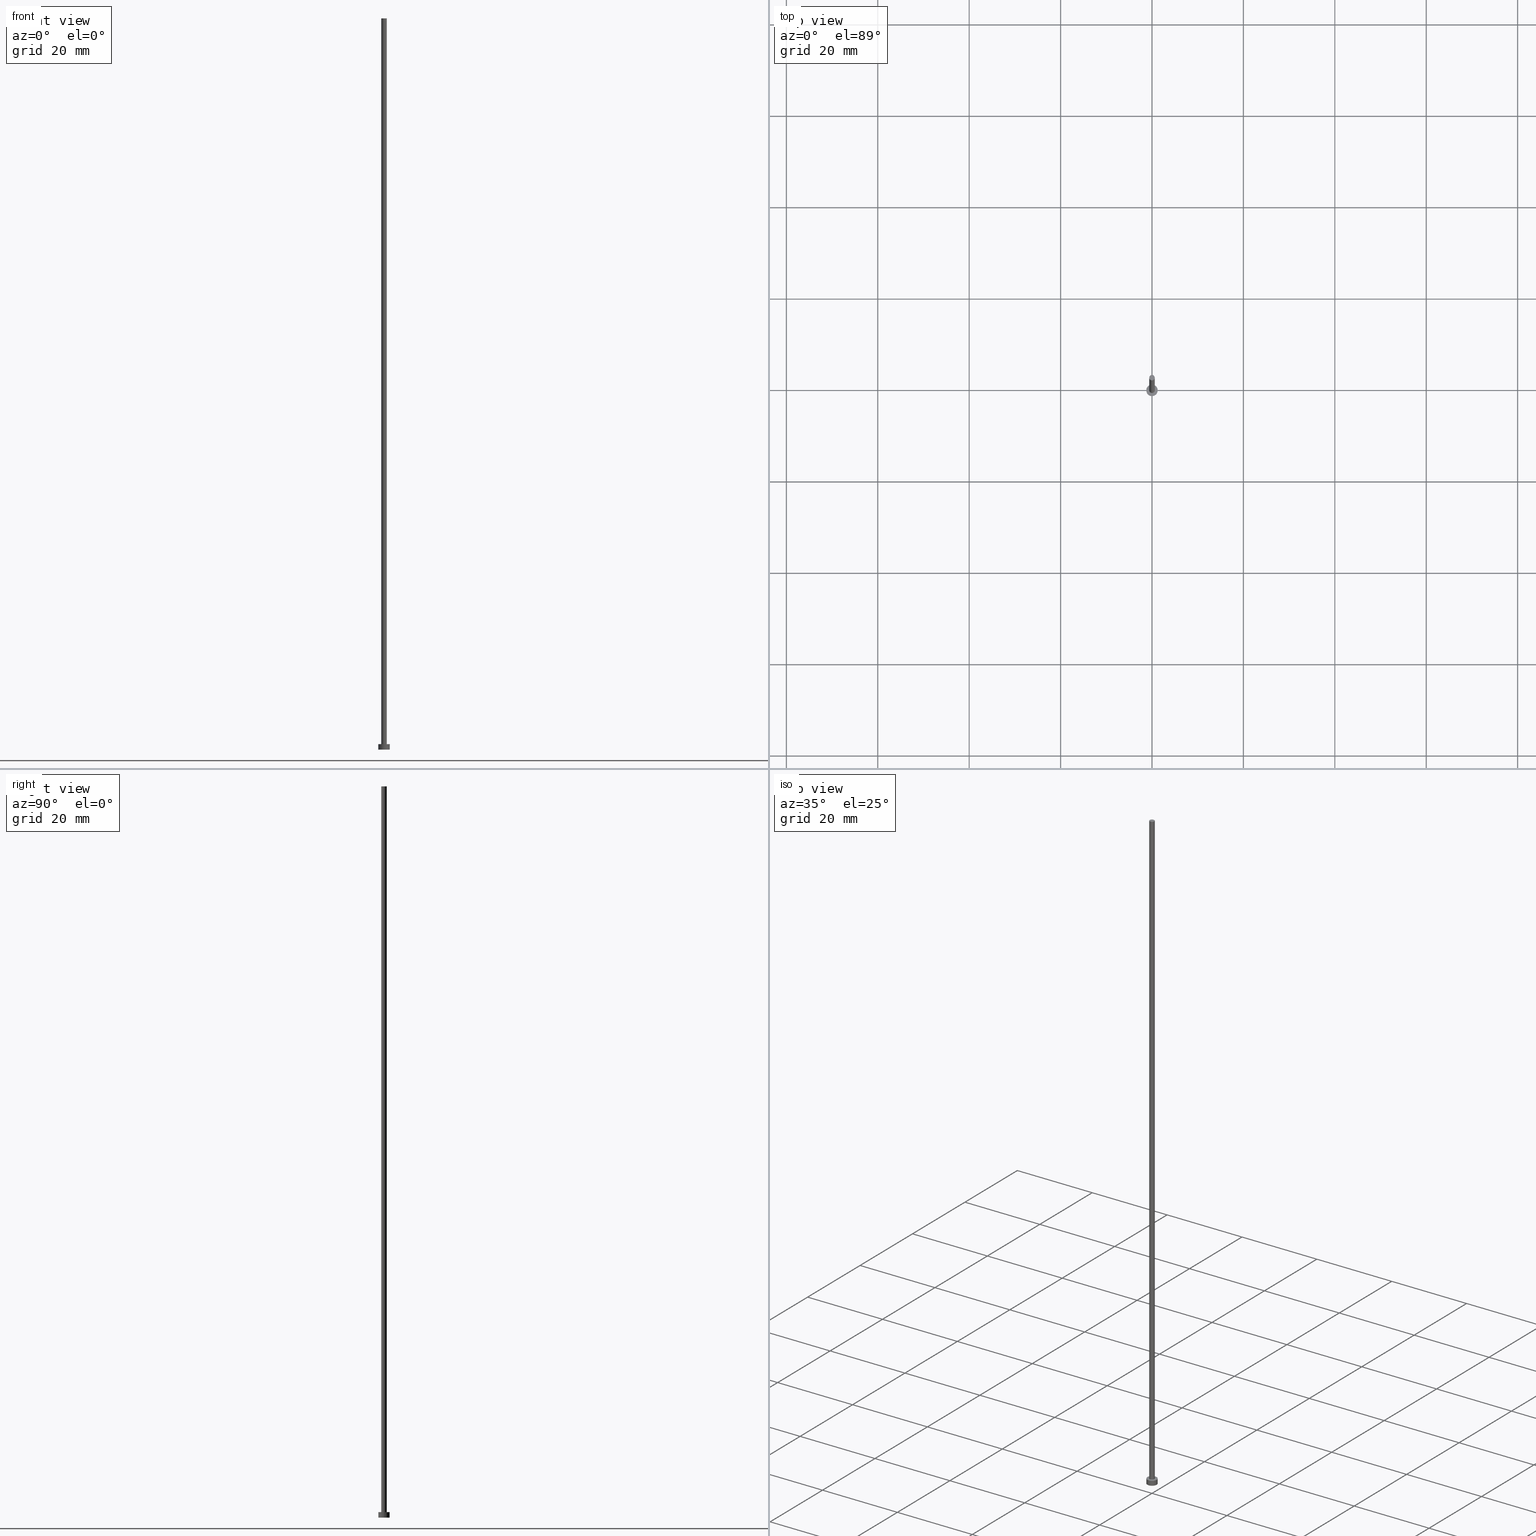
[diagram: canonical four-view strip — front | top / right | iso, engineering-drawing reading convention]
A machine part, canonical four-view strip (front | top / right | iso — engineering-drawing reading convention). The complete STEP part file that produces these views, byte-faithful:
ISO-10303-21;
HEADER;
FILE_DESCRIPTION (( 'STEP AP203' ),
    '1' );
FILE_NAME ('75b1.STEP',
    '2023-02-13T17:27:05',
    ( '' ),
    ( '' ),
    'SwSTEP 2.0',
    'SolidWorks 2019',
    '' );
FILE_SCHEMA (( 'CONFIG_CONTROL_DESIGN' ));
ENDSEC;

DATA;
#1 = ORIENTED_EDGE ( 'NONE', *, *, #59, .F. ) ;
#2 = CARTESIAN_POINT ( 'NONE',  ( 0.000000000000000000, 0.000000000000000000, 0.000000000000000000 ) ) ;
#3 = ORIENTED_EDGE ( 'NONE', *, *, #251, .F. ) ;
#4 =( NAMED_UNIT ( * ) PLANE_ANGLE_UNIT ( ) SI_UNIT ( $, .RADIAN. ) );
#5 = CC_DESIGN_PERSON_AND_ORGANIZATION_ASSIGNMENT ( #87, #158, ( #110 ) ) ;
#6 = APPROVAL_DATE_TIME ( #157, #100 ) ;
#7 = COORDINATED_UNIVERSAL_TIME_OFFSET ( 1, 0, .AHEAD. ) ;
#8 = CYLINDRICAL_SURFACE ( 'NONE', #36, 0.5999999999999999778 ) ;
#9 = DIRECTION ( 'NONE',  ( 1.000000000000000000, 0.000000000000000000, 0.000000000000000000 ) ) ;
#10 = CARTESIAN_POINT ( 'NONE',  ( 0.000000000000000000, 0.000000000000000000, 0.000000000000000000 ) ) ;
#11 = SHAPE_DEFINITION_REPRESENTATION ( #252, #230 ) ;
#12 = DIRECTION ( 'NONE',  ( 1.000000000000000000, 0.000000000000000000, 0.000000000000000000 ) ) ;
#13 = EDGE_CURVE ( 'NONE', #188, #146, #212, .T. ) ;
#14 = LINE ( 'NONE', #101, #127 ) ;
#15 = DIRECTION ( 'NONE',  ( -0.000000000000000000, -0.000000000000000000, -1.000000000000000000 ) ) ;
#16 = PRODUCT ( '75b1', '75b1', '', ( #45 ) ) ;
#17 = CARTESIAN_POINT ( 'NONE',  ( 0.000000000000000000, 0.000000000000000000, 0.000000000000000000 ) ) ;
#18 = VECTOR ( 'NONE', #205, 1000.000000000000000 ) ;
#19 = LOCAL_TIME ( 18, 27, 5.000000000000000000, #112 ) ;
#20 = DATE_AND_TIME ( #197, #166 ) ;
#21 = ORIENTED_EDGE ( 'NONE', *, *, #182, .T. ) ;
#22 = CARTESIAN_POINT ( 'NONE',  ( 0.000000000000000000, 0.000000000000000000, 160.0000000000000284 ) ) ;
#23 = EDGE_CURVE ( 'NONE', #146, #188, #253, .T. ) ;
#24 = EDGE_LOOP ( 'NONE', ( #125, #3, #44, #159 ) ) ;
#25 = UNCERTAINTY_MEASURE_WITH_UNIT (LENGTH_MEASURE( 1.000000000000000082E-05 ), #160, 'distance_accuracy_value', 'NONE');
#26 = CARTESIAN_POINT ( 'NONE',  ( -1.250000000000000000, 0.000000000000000000, 1.199999999999999956 ) ) ;
#27 = DIRECTION ( 'NONE',  ( -0.000000000000000000, -0.000000000000000000, -1.000000000000000000 ) ) ;
#28 = DIRECTION ( 'NONE',  ( 1.000000000000000000, 0.000000000000000000, 0.000000000000000000 ) ) ;
#29 = ADVANCED_FACE ( 'NONE', ( #114 ), #8, .T. ) ;
#30 = SECURITY_CLASSIFICATION_LEVEL ( 'unclassified' ) ;
#31 = AXIS2_PLACEMENT_3D ( 'NONE', #190, #57, #229 ) ;
#32 = DIRECTION ( 'NONE',  ( 0.000000000000000000, 0.000000000000000000, 1.000000000000000000 ) ) ;
#33 = DIRECTION ( 'NONE',  ( 0.000000000000000000, 0.000000000000000000, 1.000000000000000000 ) ) ;
#34 = CALENDAR_DATE ( 2023, 13, 2 ) ;
#35 = ADVANCED_FACE ( 'NONE', ( #94, #129 ), #169, .T. ) ;
#36 = AXIS2_PLACEMENT_3D ( 'NONE', #222, #171, #185 ) ;
#37 = DIRECTION ( 'NONE',  ( 0.000000000000000000, 0.000000000000000000, 1.000000000000000000 ) ) ;
#38 = AXIS2_PLACEMENT_3D ( 'NONE', #242, #124, #111 ) ;
#39 = CARTESIAN_POINT ( 'NONE',  ( 0.000000000000000000, 0.000000000000000000, 0.000000000000000000 ) ) ;
#40 = AXIS2_PLACEMENT_3D ( 'NONE', #22, #164, #28 ) ;
#41 = EDGE_LOOP ( 'NONE', ( #180, #21 ) ) ;
#42 = ORIENTED_EDGE ( 'NONE', *, *, #131, .F. ) ;
#43 = CALENDAR_DATE ( 2023, 13, 2 ) ;
#44 = ORIENTED_EDGE ( 'NONE', *, *, #59, .T. ) ;
#45 = MECHANICAL_CONTEXT ( 'NONE', #128, 'mechanical' ) ;
#46 = CARTESIAN_POINT ( 'NONE',  ( 0.000000000000000000, 0.000000000000000000, 1.199999999999999956 ) ) ;
#47 = PERSON_AND_ORGANIZATION_ROLE ( 'design_owner' ) ;
#48 = VECTOR ( 'NONE', #15, 1000.000000000000000 ) ;
#49 = CYLINDRICAL_SURFACE ( 'NONE', #233, 1.250000000000000000 ) ;
#50 = DIRECTION ( 'NONE',  ( -1.000000000000000000, 0.000000000000000000, 0.000000000000000000 ) ) ;
#51 = CC_DESIGN_PERSON_AND_ORGANIZATION_ASSIGNMENT ( #201, #181, ( #155 ) ) ;
#52 = CARTESIAN_POINT ( 'NONE',  ( 0.000000000000000000, 0.000000000000000000, 1.199999999999999956 ) ) ;
#53 = LINE ( 'NONE', #133, #18 ) ;
#54 = APPROVAL_STATUS ( 'not_yet_approved' ) ;
#55 = CIRCLE ( 'NONE', #38, 1.250000000000000000 ) ;
#56 = CALENDAR_DATE ( 2023, 13, 2 ) ;
#57 = DIRECTION ( 'NONE',  ( 0.000000000000000000, 0.000000000000000000, 1.000000000000000000 ) ) ;
#58 = CIRCLE ( 'NONE', #194, 1.250000000000000000 ) ;
#59 = EDGE_CURVE ( 'NONE', #200, #109, #53, .T. ) ;
#60 = CARTESIAN_POINT ( 'NONE',  ( 1.250000000000000000, 1.530808498934191571E-16, 1.199999999999999956 ) ) ;
#61 = DIRECTION ( 'NONE',  ( 1.000000000000000000, 0.000000000000000000, 0.000000000000000000 ) ) ;
#62 = ORIENTED_EDGE ( 'NONE', *, *, #251, .T. ) ;
#63 = LOCAL_TIME ( 18, 27, 5.000000000000000000, #244 ) ;
#64 = ORIENTED_EDGE ( 'NONE', *, *, #79, .T. ) ;
#65 = DIRECTION ( 'NONE',  ( 0.000000000000000000, 0.000000000000000000, 1.000000000000000000 ) ) ;
#66 = FACE_OUTER_BOUND ( 'NONE', #24, .T. ) ;
#67 = APPLICATION_PROTOCOL_DEFINITION ( 'international standard', 'config_control_design', 1994, #143 ) ;
#68 = AXIS2_PLACEMENT_3D ( 'NONE', #235, #90, #50 ) ;
#69 = ORIENTED_EDGE ( 'NONE', *, *, #13, .T. ) ;
#70 = PERSON_AND_ORGANIZATION ( #136, #134 ) ;
#71 = DIRECTION ( 'NONE',  ( 1.000000000000000000, 0.000000000000000000, -0.000000000000000000 ) ) ;
#72 = DATE_TIME_ROLE ( 'classification_date' ) ;
#73 = CARTESIAN_POINT ( 'NONE',  ( -0.5999999999999999778, 0.000000000000000000, 160.0000000000000284 ) ) ;
#74 = EDGE_CURVE ( 'NONE', #236, #109, #138, .T. ) ;
#75 = PERSON_AND_ORGANIZATION ( #136, #134 ) ;
#76 = FACE_OUTER_BOUND ( 'NONE', #41, .T. ) ;
#77 = PERSON_AND_ORGANIZATION_ROLE ( 'classification_officer' ) ;
#78 = DIRECTION ( 'NONE',  ( 1.000000000000000000, 0.000000000000000000, -0.000000000000000000 ) ) ;
#79 = EDGE_CURVE ( 'NONE', #119, #146, #241, .T. ) ;
#80 = CARTESIAN_POINT ( 'NONE',  ( 0.000000000000000000, 0.000000000000000000, 160.0000000000000284 ) ) ;
#81 = ADVANCED_FACE ( 'NONE', ( #225 ), #95, .T. ) ;
#82 = SECURITY_CLASSIFICATION ( '', '', #30 ) ;
#83 = PLANE ( 'NONE',  #226 ) ;
#84 = AXIS2_PLACEMENT_3D ( 'NONE', #187, #65, #204 ) ;
#85 = CIRCLE ( 'NONE', #186, 1.250000000000000000 ) ;
#86 = APPROVAL_ROLE ( '' ) ;
#87 = PERSON_AND_ORGANIZATION ( #136, #134 ) ;
#88 = ORIENTED_EDGE ( 'NONE', *, *, #23, .F. ) ;
#89 = APPROVAL_ROLE ( '' ) ;
#90 = DIRECTION ( 'NONE',  ( -0.000000000000000000, -0.000000000000000000, -1.000000000000000000 ) ) ;
#91 = EDGE_LOOP ( 'NONE', ( #88, #243 ) ) ;
#92 = VECTOR ( 'NONE', #154, 1000.000000000000000 ) ;
#93 = CC_DESIGN_SECURITY_CLASSIFICATION ( #82, ( #110 ) ) ;
#94 = FACE_BOUND ( 'NONE', #91, .T. ) ;
#95 = CYLINDRICAL_SURFACE ( 'NONE', #174, 1.250000000000000000 ) ;
#96 = AXIS2_PLACEMENT_3D ( 'NONE', #17, #37, #191 ) ;
#97 = DIRECTION ( 'NONE',  ( 0.000000000000000000, 0.000000000000000000, 1.000000000000000000 ) ) ;
#98 = DIRECTION ( 'NONE',  ( 1.000000000000000000, 0.000000000000000000, 0.000000000000000000 ) ) ;
#99 = FACE_OUTER_BOUND ( 'NONE', #239, .T. ) ;
#100 = APPROVAL ( #214, 'NEUR�EN�' ) ;
#101 = CARTESIAN_POINT ( 'NONE',  ( 1.250000000000000000, 1.530808498934191571E-16, 1.199999999999999956 ) ) ;
#102 = APPROVAL ( #255, 'NEUR�EN�' ) ;
#103 = AXIS2_PLACEMENT_3D ( 'NONE', #245, #247, #71 ) ;
#104 = ORIENTED_EDGE ( 'NONE', *, *, #79, .F. ) ;
#105 = FACE_OUTER_BOUND ( 'NONE', #113, .T. ) ;
#106 = ORIENTED_EDGE ( 'NONE', *, *, #156, .F. ) ;
#107 = PRODUCT_RELATED_PRODUCT_CATEGORY ( 'detail', '', ( #16 ) ) ;
#108 = CLOSED_SHELL ( 'NONE', ( #223, #81, #118, #35, #140, #29, #161 ) ) ;
#109 = VERTEX_POINT ( 'NONE', #163 ) ;
#110 = PRODUCT_DEFINITION_FORMATION_WITH_SPECIFIED_SOURCE ( 'LIBOVOLN�', '', #16, .NOT_KNOWN. ) ;
#111 = DIRECTION ( 'NONE',  ( 1.000000000000000000, 0.000000000000000000, 0.000000000000000000 ) ) ;
#112 = COORDINATED_UNIVERSAL_TIME_OFFSET ( 1, 0, .AHEAD. ) ;
#113 = EDGE_LOOP ( 'NONE', ( #198, #152, #69, #104 ) ) ;
#114 = FACE_OUTER_BOUND ( 'NONE', #220, .T. ) ;
#115 = PERSON_AND_ORGANIZATION_ROLE ( 'design_supplier' ) ;
#116 = DIRECTION ( 'NONE',  ( 0.000000000000000000, 0.000000000000000000, 1.000000000000000000 ) ) ;
#117 = PLANE ( 'NONE',  #96 ) ;
#118 = ADVANCED_FACE ( 'NONE', ( #66 ), #49, .T. ) ;
#119 = VERTEX_POINT ( 'NONE', #135 ) ;
#120 = ORIENTED_EDGE ( 'NONE', *, *, #168, .F. ) ;
#121 = LOCAL_TIME ( 18, 27, 5.000000000000000000, #179 ) ;
#122 = COORDINATED_UNIVERSAL_TIME_OFFSET ( 1, 0, .AHEAD. ) ;
#123 = CC_DESIGN_PERSON_AND_ORGANIZATION_ASSIGNMENT ( #167, #77, ( #82 ) ) ;
#124 = DIRECTION ( 'NONE',  ( 0.000000000000000000, 0.000000000000000000, 1.000000000000000000 ) ) ;
#125 = ORIENTED_EDGE ( 'NONE', *, *, #153, .F. ) ;
#126 = CYLINDRICAL_SURFACE ( 'NONE', #68, 0.5999999999999999778 ) ;
#127 = VECTOR ( 'NONE', #176, 1000.000000000000000 ) ;
#128 = APPLICATION_CONTEXT ( 'configuration controlled 3d designs of mechanical parts and assemblies' ) ;
#129 = FACE_OUTER_BOUND ( 'NONE', #216, .T. ) ;
#130 = CC_DESIGN_DATE_AND_TIME_ASSIGNMENT ( #221, #72, ( #82 ) ) ;
#131 = EDGE_CURVE ( 'NONE', #109, #236, #58, .T. ) ;
#132 = DIRECTION ( 'NONE',  ( 1.000000000000000000, 0.000000000000000000, 0.000000000000000000 ) ) ;
#133 = CARTESIAN_POINT ( 'NONE',  ( -1.250000000000000000, 0.000000000000000000, 1.199999999999999956 ) ) ;
#134 = ORGANIZATION ( 'NEUR�EN�', 'NEUR�EN�', '' ) ;
#135 = CARTESIAN_POINT ( 'NONE',  ( -0.5999999999999999778, 0.000000000000000000, 160.0000000000000284 ) ) ;
#136 = PERSON ( 'NEUR�EN�', 'NEUR�EN�', 'NEUR�EN�', ('NEUR�EN�'), ('NEUR�EN�'), ('NEUR�EN�') ) ;
#137 = DIRECTION ( 'NONE',  ( 0.000000000000000000, 0.000000000000000000, 1.000000000000000000 ) ) ;
#138 = CIRCLE ( 'NONE', #141, 1.250000000000000000 ) ;
#139 = APPROVAL_PERSON_ORGANIZATION ( #240, #100, #89 ) ;
#140 = ADVANCED_FACE ( 'NONE', ( #99 ), #117, .F. ) ;
#141 = AXIS2_PLACEMENT_3D ( 'NONE', #10, #32, #9 ) ;
#142 = LOCAL_TIME ( 18, 27, 5.000000000000000000, #7 ) ;
#143 = APPLICATION_CONTEXT ( 'configuration controlled 3d designs of mechanical parts and assemblies' ) ;
#144 = ORIENTED_EDGE ( 'NONE', *, *, #153, .T. ) ;
#145 = DIRECTION ( 'NONE',  ( -0.000000000000000000, -0.000000000000000000, -1.000000000000000000 ) ) ;
#146 = VERTEX_POINT ( 'NONE', #250 ) ;
#147 = APPROVAL_PERSON_ORGANIZATION ( #70, #224, #206 ) ;
#148 = CALENDAR_DATE ( 2023, 13, 2 ) ;
#149 = CC_DESIGN_PERSON_AND_ORGANIZATION_ASSIGNMENT ( #162, #47, ( #16 ) ) ;
#150 = CARTESIAN_POINT ( 'NONE',  ( 0.5999999999999999778, 7.347880794884117764E-17, 160.0000000000000284 ) ) ;
#151 = APPROVAL_DATE_TIME ( #227, #224 ) ;
#152 = ORIENTED_EDGE ( 'NONE', *, *, #168, .T. ) ;
#153 = EDGE_CURVE ( 'NONE', #177, #236, #14, .T. ) ;
#154 = DIRECTION ( 'NONE',  ( -0.000000000000000000, -0.000000000000000000, -1.000000000000000000 ) ) ;
#155 = PRODUCT_DEFINITION ( 'NEZN�M�', '', #110, #173 ) ;
#156 = EDGE_CURVE ( 'NONE', #177, #200, #85, .T. ) ;
#157 = DATE_AND_TIME ( #43, #19 ) ;
#158 = PERSON_AND_ORGANIZATION_ROLE ( 'creator' ) ;
#159 = ORIENTED_EDGE ( 'NONE', *, *, #131, .T. ) ;
#160 =( LENGTH_UNIT ( ) NAMED_UNIT ( * ) SI_UNIT ( .MILLI., .METRE. ) );
#161 = ADVANCED_FACE ( 'NONE', ( #76 ), #83, .T. ) ;
#162 = PERSON_AND_ORGANIZATION ( #136, #134 ) ;
#163 = CARTESIAN_POINT ( 'NONE',  ( -1.250000000000000000, 0.000000000000000000, 0.000000000000000000 ) ) ;
#164 = DIRECTION ( 'NONE',  ( 0.000000000000000000, 0.000000000000000000, 1.000000000000000000 ) ) ;
#165 = ORIENTED_EDGE ( 'NONE', *, *, #74, .T. ) ;
#166 = LOCAL_TIME ( 18, 27, 5.000000000000000000, #122 ) ;
#167 = PERSON_AND_ORGANIZATION ( #136, #134 ) ;
#168 = EDGE_CURVE ( 'NONE', #193, #188, #231, .T. ) ;
#169 = PLANE ( 'NONE',  #103 ) ;
#170 = CC_DESIGN_PERSON_AND_ORGANIZATION_ASSIGNMENT ( #75, #115, ( #110 ) ) ;
#171 = DIRECTION ( 'NONE',  ( -0.000000000000000000, -0.000000000000000000, -1.000000000000000000 ) ) ;
#172 = ORIENTED_EDGE ( 'NONE', *, *, #74, .F. ) ;
#173 = DESIGN_CONTEXT ( 'detailed design', #143, 'design' ) ;
#174 = AXIS2_PLACEMENT_3D ( 'NONE', #46, #27, #202 ) ;
#175 = AXIS2_PLACEMENT_3D ( 'NONE', #2, #203, #61 ) ;
#176 = DIRECTION ( 'NONE',  ( -0.000000000000000000, -0.000000000000000000, -1.000000000000000000 ) ) ;
#177 = VERTEX_POINT ( 'NONE', #60 ) ;
#178 =( GEOMETRIC_REPRESENTATION_CONTEXT ( 3 ) GLOBAL_UNCERTAINTY_ASSIGNED_CONTEXT ( ( #25 ) ) GLOBAL_UNIT_ASSIGNED_CONTEXT ( ( #160, #4, #199 ) ) REPRESENTATION_CONTEXT ( 'NONE', 'WORKASPACE' ) );
#179 = COORDINATED_UNIVERSAL_TIME_OFFSET ( 1, 0, .AHEAD. ) ;
#180 = ORIENTED_EDGE ( 'NONE', *, *, #232, .T. ) ;
#181 = PERSON_AND_ORGANIZATION_ROLE ( 'creator' ) ;
#182 = EDGE_CURVE ( 'NONE', #193, #119, #248, .T. ) ;
#183 = EDGE_LOOP ( 'NONE', ( #106, #144, #165, #1 ) ) ;
#184 = PERSON_AND_ORGANIZATION ( #136, #134 ) ;
#185 = DIRECTION ( 'NONE',  ( -1.000000000000000000, 0.000000000000000000, 0.000000000000000000 ) ) ;
#186 = AXIS2_PLACEMENT_3D ( 'NONE', #207, #97, #98 ) ;
#187 = CARTESIAN_POINT ( 'NONE',  ( 0.000000000000000000, 0.000000000000000000, 1.199999999999999956 ) ) ;
#188 = VERTEX_POINT ( 'NONE', #209 ) ;
#189 = CARTESIAN_POINT ( 'NONE',  ( 0.000000000000000000, 0.000000000000000000, 1.199999999999999956 ) ) ;
#190 = CARTESIAN_POINT ( 'NONE',  ( 0.000000000000000000, 0.000000000000000000, 160.0000000000000284 ) ) ;
#191 = DIRECTION ( 'NONE',  ( 1.000000000000000000, 0.000000000000000000, -0.000000000000000000 ) ) ;
#192 = CC_DESIGN_APPROVAL ( #100, ( #155 ) ) ;
#193 = VERTEX_POINT ( 'NONE', #150 ) ;
#194 = AXIS2_PLACEMENT_3D ( 'NONE', #39, #137, #12 ) ;
#195 = CC_DESIGN_APPROVAL ( #102, ( #110 ) ) ;
#196 = ORIENTED_EDGE ( 'NONE', *, *, #232, .F. ) ;
#197 = CALENDAR_DATE ( 2023, 13, 2 ) ;
#198 = ORIENTED_EDGE ( 'NONE', *, *, #182, .F. ) ;
#199 =( NAMED_UNIT ( * ) SI_UNIT ( $, .STERADIAN. ) SOLID_ANGLE_UNIT ( ) );
#200 = VERTEX_POINT ( 'NONE', #26 ) ;
#201 = PERSON_AND_ORGANIZATION ( #136, #134 ) ;
#202 = DIRECTION ( 'NONE',  ( -1.000000000000000000, 0.000000000000000000, 0.000000000000000000 ) ) ;
#203 = DIRECTION ( 'NONE',  ( 0.000000000000000000, 0.000000000000000000, 1.000000000000000000 ) ) ;
#204 = DIRECTION ( 'NONE',  ( 1.000000000000000000, 0.000000000000000000, 0.000000000000000000 ) ) ;
#205 = DIRECTION ( 'NONE',  ( -0.000000000000000000, -0.000000000000000000, -1.000000000000000000 ) ) ;
#206 = APPROVAL_ROLE ( '' ) ;
#207 = CARTESIAN_POINT ( 'NONE',  ( 0.000000000000000000, 0.000000000000000000, 1.199999999999999956 ) ) ;
#208 = APPROVAL_PERSON_ORGANIZATION ( #184, #102, #86 ) ;
#209 = CARTESIAN_POINT ( 'NONE',  ( 0.5999999999999999778, 7.347880794884117764E-17, 1.199999999999999956 ) ) ;
#210 = CC_DESIGN_DATE_AND_TIME_ASSIGNMENT ( #219, #217, ( #155 ) ) ;
#211 = DIRECTION ( 'NONE',  ( -1.000000000000000000, 0.000000000000000000, 0.000000000000000000 ) ) ;
#212 = CIRCLE ( 'NONE', #249, 0.5999999999999999778 ) ;
#213 = ORIENTED_EDGE ( 'NONE', *, *, #23, .T. ) ;
#214 = APPROVAL_STATUS ( 'not_yet_approved' ) ;
#215 = CIRCLE ( 'NONE', #40, 0.5999999999999999778 ) ;
#216 = EDGE_LOOP ( 'NONE', ( #62, #234 ) ) ;
#217 = DATE_TIME_ROLE ( 'creation_date' ) ;
#218 = CARTESIAN_POINT ( 'NONE',  ( 1.250000000000000000, 1.530808498934191571E-16, 0.000000000000000000 ) ) ;
#219 = DATE_AND_TIME ( #148, #121 ) ;
#220 = EDGE_LOOP ( 'NONE', ( #120, #196, #64, #213 ) ) ;
#221 = DATE_AND_TIME ( #34, #142 ) ;
#222 = CARTESIAN_POINT ( 'NONE',  ( 0.000000000000000000, 0.000000000000000000, 160.0000000000000284 ) ) ;
#223 = ADVANCED_FACE ( 'NONE', ( #105 ), #126, .T. ) ;
#224 = APPROVAL ( #54, 'NEUR�EN�' ) ;
#225 = FACE_OUTER_BOUND ( 'NONE', #183, .T. ) ;
#226 = AXIS2_PLACEMENT_3D ( 'NONE', #80, #116, #78 ) ;
#227 = DATE_AND_TIME ( #56, #63 ) ;
#228 = CARTESIAN_POINT ( 'NONE',  ( 0.5999999999999999778, 7.347880794884117764E-17, 160.0000000000000284 ) ) ;
#229 = DIRECTION ( 'NONE',  ( 1.000000000000000000, 0.000000000000000000, 0.000000000000000000 ) ) ;
#230 = ADVANCED_BREP_SHAPE_REPRESENTATION ( '75b1', ( #246, #175 ), #178 ) ;
#231 = LINE ( 'NONE', #228, #48 ) ;
#232 = EDGE_CURVE ( 'NONE', #119, #193, #215, .T. ) ;
#233 = AXIS2_PLACEMENT_3D ( 'NONE', #189, #145, #211 ) ;
#234 = ORIENTED_EDGE ( 'NONE', *, *, #156, .T. ) ;
#235 = CARTESIAN_POINT ( 'NONE',  ( 0.000000000000000000, 0.000000000000000000, 160.0000000000000284 ) ) ;
#236 = VERTEX_POINT ( 'NONE', #218 ) ;
#237 = APPROVAL_DATE_TIME ( #20, #102 ) ;
#238 = APPLICATION_PROTOCOL_DEFINITION ( 'international standard', 'config_control_design', 1994, #128 ) ;
#239 = EDGE_LOOP ( 'NONE', ( #42, #172 ) ) ;
#240 = PERSON_AND_ORGANIZATION ( #136, #134 ) ;
#241 = LINE ( 'NONE', #73, #92 ) ;
#242 = CARTESIAN_POINT ( 'NONE',  ( 0.000000000000000000, 0.000000000000000000, 1.199999999999999956 ) ) ;
#243 = ORIENTED_EDGE ( 'NONE', *, *, #13, .F. ) ;
#244 = COORDINATED_UNIVERSAL_TIME_OFFSET ( 1, 0, .AHEAD. ) ;
#245 = CARTESIAN_POINT ( 'NONE',  ( 0.000000000000000000, 0.000000000000000000, 1.199999999999999956 ) ) ;
#246 = MANIFOLD_SOLID_BREP ( 'P�idat vysunut�m3', #108 ) ;
#247 = DIRECTION ( 'NONE',  ( 0.000000000000000000, 0.000000000000000000, 1.000000000000000000 ) ) ;
#248 = CIRCLE ( 'NONE', #31, 0.5999999999999999778 ) ;
#249 = AXIS2_PLACEMENT_3D ( 'NONE', #52, #33, #132 ) ;
#250 = CARTESIAN_POINT ( 'NONE',  ( -0.5999999999999999778, 0.000000000000000000, 1.199999999999999956 ) ) ;
#251 = EDGE_CURVE ( 'NONE', #200, #177, #55, .T. ) ;
#252 = PRODUCT_DEFINITION_SHAPE ( 'NONE', 'NONE',  #155 ) ;
#253 = CIRCLE ( 'NONE', #84, 0.5999999999999999778 ) ;
#254 = CC_DESIGN_APPROVAL ( #224, ( #82 ) ) ;
#255 = APPROVAL_STATUS ( 'not_yet_approved' ) ;
ENDSEC;
END-ISO-10303-21;
